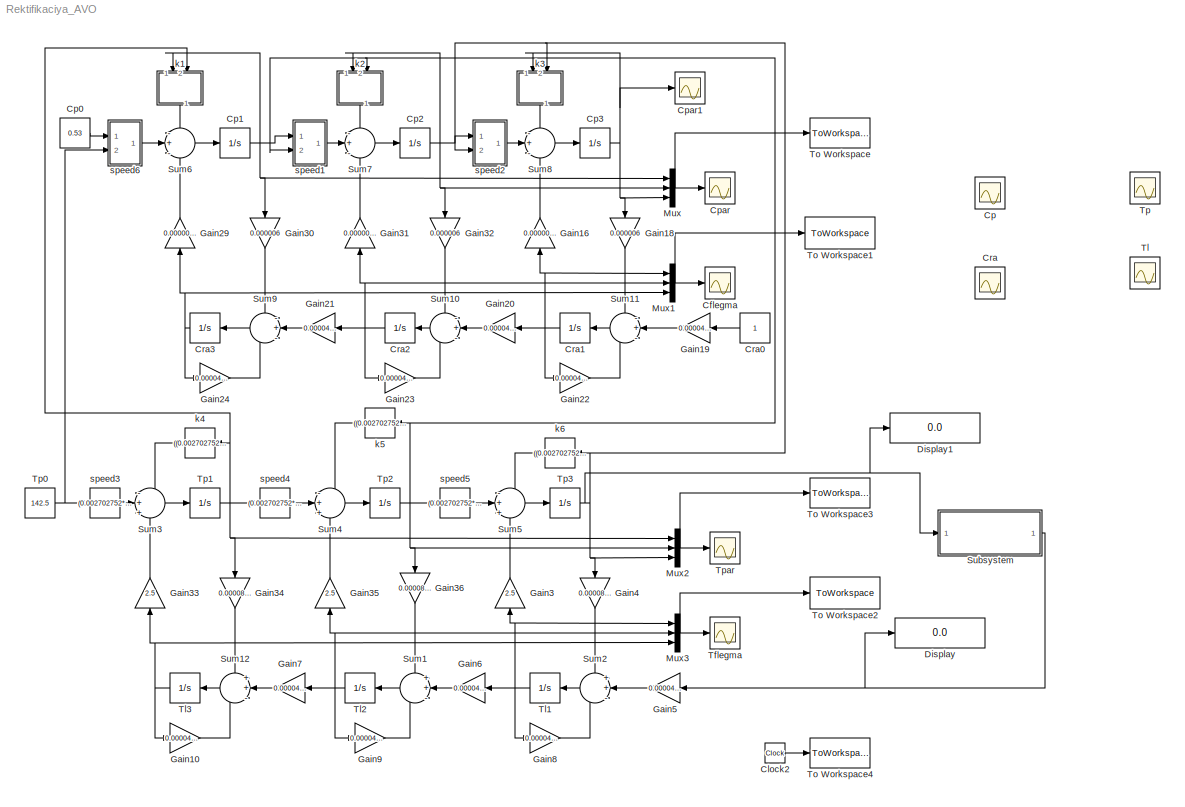
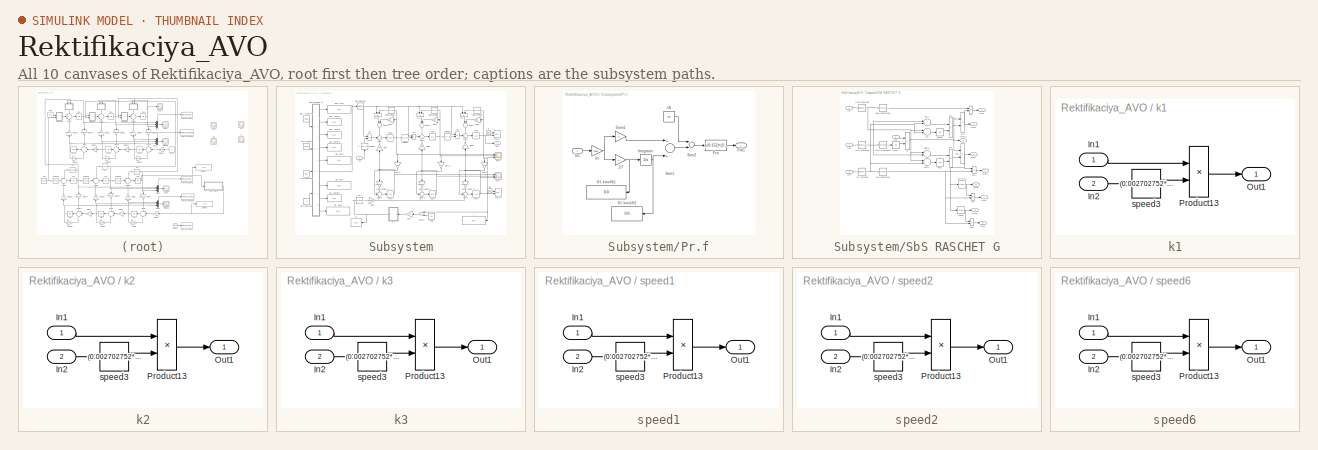
[diagram: thumbnail index - all 10 canvases of the model, root first then tree order]
MODEL Rektifikaciya_AVO
KIND model
BLOCK [Scope] Cflegma
  DataFormat = StructureWithTime
  Floating = off
  NumInputPorts = 1
  Ports = [1]
  SID = 123
  SampleTime = 0
  SaveName = ScopeData5
BLOCK [Clock] Clock2
  Decimation = 10
  SID = 127
BLOCK [Scope] Cp
  DataFormat = StructureWithTime
  Floating = off
  LimitDataPoints = off
  NumInputPorts = 3
  Ports = [3]
  SID = 114
  SampleTime = 0
  TimeRange = 12
  YMax = 62.5~82~95.37000000000001
  YMin = 61.5~77~95.34999999999999
BLOCK [Constant] Cp0
  SID = 2
  Value = 0.53
BLOCK [Integrator] Cp1
  InitialCondition = 0.665
  Ports = [1, 1]
  SID = 3
BLOCK [Integrator] Cp2
  InitialCondition = 0.803
  Ports = [1, 1]
  SID = 4
BLOCK [Integrator] Cp3
  InitialCondition = 0.986
  Ports = [1, 1]
  SID = 5
BLOCK [Scope] Cpar
  DataFormat = StructureWithTime
  Floating = off
  NumInputPorts = 1
  Ports = [1]
  SID = 122
  SampleTime = 0
  SaveName = ScopeData4
BLOCK [Scope] Cpar1
  DataFormat = StructureWithTime
  Floating = off
  LimitDataPoints = off
  NumInputPorts = 1
  Ports = [1]
  SID = 254
  SampleTime = 0
  SaveName = ScopeData10
BLOCK [Scope] Cra
  DataFormat = StructureWithTime
  Floating = off
  NumInputPorts = 3
  Ports = [3]
  SID = 115
  SampleTime = 0
  SaveName = ScopeData1
  YMax = 4.28~2.5~1
  YMin = 4.17~2.4~0.84
BLOCK [Constant] Cra0
  SID = 7
BLOCK [Integrator] Cra1
  InitialCondition = 0.827
  Ports = [1, 1]
  SID = 8
BLOCK [Integrator] Cra2
  InitialCondition = 0.6862
  Ports = [1, 1]
  SID = 9
BLOCK [Integrator] Cra3
  InitialCondition = 0.5696
  Ports = [1, 1]
  SID = 10
BLOCK [Display] Display
  Decimation = 1
  Lockdown = off
  Ports = [1]
  SID = 256
BLOCK [Display] Display1
  Decimation = 1
  Lockdown = off
  Ports = [1]
  SID = 257
BLOCK [Gain] Gain10
  Gain = 0.00004/1.17+0.0000855
  OutDataTypeMode = Inherit via internal rule
  OutDataTypeStr = Inherit: Inherit via internal rule
  ParamDataTypeStr = Inherit: Inherit via internal rule
  ParameterDataTypeMode = Inherit via internal rule
  SID = 11
  SaturateOnIntegerOverflow = off
BLOCK [Gain] Gain16
  Gain = 0.000000000145
  OutDataTypeMode = Inherit via internal rule
  OutDataTypeStr = Inherit: Inherit via internal rule
  ParamDataTypeStr = Inherit: Inherit via internal rule
  ParameterDataTypeMode = Inherit via internal rule
  SID = 12
  SaturateOnIntegerOverflow = off
BLOCK [Gain] Gain18
  Gain = 0.000006
  OutDataTypeMode = Inherit via internal rule
  OutDataTypeStr = Inherit: Inherit via internal rule
  ParamDataTypeStr = Inherit: Inherit via internal rule
  ParameterDataTypeMode = Inherit via internal rule
  SID = 13
  SaturateOnIntegerOverflow = off
BLOCK [Gain] Gain19
  Gain = 0.00004/1.17
  OutDataTypeMode = Inherit via internal rule
  OutDataTypeStr = Inherit: Inherit via internal rule
  ParamDataTypeStr = Inherit: Inherit via internal rule
  ParameterDataTypeMode = Inherit via internal rule
  SID = 14
  SaturateOnIntegerOverflow = off
BLOCK [Gain] Gain20
  Gain = 0.00004/1.17
  OutDataTypeMode = Inherit via internal rule
  OutDataTypeStr = Inherit: Inherit via internal rule
  ParamDataTypeStr = Inherit: Inherit via internal rule
  ParameterDataTypeMode = Inherit via internal rule
  SID = 15
  SaturateOnIntegerOverflow = off
BLOCK [Gain] Gain21
  Gain = 0.00004/1.17
  OutDataTypeMode = Inherit via internal rule
  OutDataTypeStr = Inherit: Inherit via internal rule
  ParamDataTypeStr = Inherit: Inherit via internal rule
  ParameterDataTypeMode = Inherit via internal rule
  SID = 16
  SaturateOnIntegerOverflow = off
BLOCK [Gain] Gain22
  Gain = 0.00004/1.17-(0.000006*0.000000000145)
  OutDataTypeMode = Inherit via internal rule
  OutDataTypeStr = Inherit: Inherit via internal rule
  ParamDataTypeStr = Inherit: Inherit via internal rule
  ParameterDataTypeMode = Inherit via internal rule
  SID = 17
  SaturateOnIntegerOverflow = off
BLOCK [Gain] Gain23
  Gain = 0.00004/1.17-(0.000006*0.000000000145)
  OutDataTypeMode = Inherit via internal rule
  OutDataTypeStr = Inherit: Inherit via internal rule
  ParamDataTypeStr = Inherit: Inherit via internal rule
  ParameterDataTypeMode = Inherit via internal rule
  SID = 18
  SaturateOnIntegerOverflow = off
BLOCK [Gain] Gain24
  Gain = 0.00004/1.17-(0.000006*0.000000000145)
  OutDataTypeMode = Inherit via internal rule
  OutDataTypeStr = Inherit: Inherit via internal rule
  ParamDataTypeStr = Inherit: Inherit via internal rule
  ParameterDataTypeMode = Inherit via internal rule
  SID = 19
  SaturateOnIntegerOverflow = off
BLOCK [Gain] Gain29
  Gain = 0.000000000145
  OutDataTypeMode = Inherit via internal rule
  OutDataTypeStr = Inherit: Inherit via internal rule
  ParamDataTypeStr = Inherit: Inherit via internal rule
  ParameterDataTypeMode = Inherit via internal rule
  SID = 20
  SaturateOnIntegerOverflow = off
BLOCK [Gain] Gain3
  Gain = 2.5
  OutDataTypeMode = Inherit via internal rule
  OutDataTypeStr = Inherit: Inherit via internal rule
  ParamDataTypeStr = Inherit: Inherit via internal rule
  ParameterDataTypeMode = Inherit via internal rule
  SID = 21
  SaturateOnIntegerOverflow = off
BLOCK [Gain] Gain30
  Gain = 0.000006
  OutDataTypeMode = Inherit via internal rule
  OutDataTypeStr = Inherit: Inherit via internal rule
  ParamDataTypeStr = Inherit: Inherit via internal rule
  ParameterDataTypeMode = Inherit via internal rule
  SID = 22
  SaturateOnIntegerOverflow = off
BLOCK [Gain] Gain31
  Gain = 0.000000000145
  OutDataTypeMode = Inherit via internal rule
  OutDataTypeStr = Inherit: Inherit via internal rule
  ParamDataTypeStr = Inherit: Inherit via internal rule
  ParameterDataTypeMode = Inherit via internal rule
  SID = 23
  SaturateOnIntegerOverflow = off
BLOCK [Gain] Gain32
  Gain = 0.000006
  OutDataTypeMode = Inherit via internal rule
  OutDataTypeStr = Inherit: Inherit via internal rule
  ParamDataTypeStr = Inherit: Inherit via internal rule
  ParameterDataTypeMode = Inherit via internal rule
  SID = 24
  SaturateOnIntegerOverflow = off
BLOCK [Gain] Gain33
  Gain = 2.5
  OutDataTypeMode = Inherit via internal rule
  OutDataTypeStr = Inherit: Inherit via internal rule
  ParamDataTypeStr = Inherit: Inherit via internal rule
  ParameterDataTypeMode = Inherit via internal rule
  SID = 25
  SaturateOnIntegerOverflow = off
BLOCK [Gain] Gain34
  Gain = 0.0000855
  OutDataTypeMode = Inherit via internal rule
  OutDataTypeStr = Inherit: Inherit via internal rule
  ParamDataTypeStr = Inherit: Inherit via internal rule
  ParameterDataTypeMode = Inherit via internal rule
  SID = 26
  SaturateOnIntegerOverflow = off
BLOCK [Gain] Gain35
  Gain = 2.5
  OutDataTypeMode = Inherit via internal rule
  OutDataTypeStr = Inherit: Inherit via internal rule
  ParamDataTypeStr = Inherit: Inherit via internal rule
  ParameterDataTypeMode = Inherit via internal rule
  SID = 27
  SaturateOnIntegerOverflow = off
BLOCK [Gain] Gain36
  Gain = 0.0000855
  OutDataTypeMode = Inherit via internal rule
  OutDataTypeStr = Inherit: Inherit via internal rule
  ParamDataTypeStr = Inherit: Inherit via internal rule
  ParameterDataTypeMode = Inherit via internal rule
  SID = 28
  SaturateOnIntegerOverflow = off
BLOCK [Gain] Gain4
  Gain = 0.0000855
  OutDataTypeMode = Inherit via internal rule
  OutDataTypeStr = Inherit: Inherit via internal rule
  ParamDataTypeStr = Inherit: Inherit via internal rule
  ParameterDataTypeMode = Inherit via internal rule
  SID = 29
  SaturateOnIntegerOverflow = off
BLOCK [Gain] Gain5
  Gain = 0.00004/1.17
  OutDataTypeMode = Inherit via internal rule
  OutDataTypeStr = Inherit: Inherit via internal rule
  ParamDataTypeStr = Inherit: Inherit via internal rule
  ParameterDataTypeMode = Inherit via internal rule
  SID = 30
  SaturateOnIntegerOverflow = off
BLOCK [Gain] Gain6
  Gain = 0.00004/1.17
  OutDataTypeMode = Inherit via internal rule
  OutDataTypeStr = Inherit: Inherit via internal rule
  ParamDataTypeStr = Inherit: Inherit via internal rule
  ParameterDataTypeMode = Inherit via internal rule
  SID = 31
  SaturateOnIntegerOverflow = off
BLOCK [Gain] Gain7
  Gain = 0.00004/1.17
  OutDataTypeMode = Inherit via internal rule
  OutDataTypeStr = Inherit: Inherit via internal rule
  ParamDataTypeStr = Inherit: Inherit via internal rule
  ParameterDataTypeMode = Inherit via internal rule
  SID = 32
  SaturateOnIntegerOverflow = off
BLOCK [Gain] Gain8
  Gain = 0.00004/1.17+0.0000855
  OutDataTypeMode = Inherit via internal rule
  OutDataTypeStr = Inherit: Inherit via internal rule
  ParamDataTypeStr = Inherit: Inherit via internal rule
  ParameterDataTypeMode = Inherit via internal rule
  SID = 33
  SaturateOnIntegerOverflow = off
BLOCK [Gain] Gain9
  Gain = 0.00004/1.17+0.0000855
  OutDataTypeMode = Inherit via internal rule
  OutDataTypeStr = Inherit: Inherit via internal rule
  ParamDataTypeStr = Inherit: Inherit via internal rule
  ParameterDataTypeMode = Inherit via internal rule
  SID = 34
  SaturateOnIntegerOverflow = off
BLOCK [Mux] Mux
  Inputs = 3
  Ports = [3, 1]
  SID = 118
BLOCK [Mux] Mux1
  Inputs = 3
  Ports = [3, 1]
  SID = 119
BLOCK [Mux] Mux2
  Inputs = 3
  Ports = [3, 1]
  SID = 120
BLOCK [Mux] Mux3
  Inputs = 3
  Ports = [3, 1]
  SID = 121
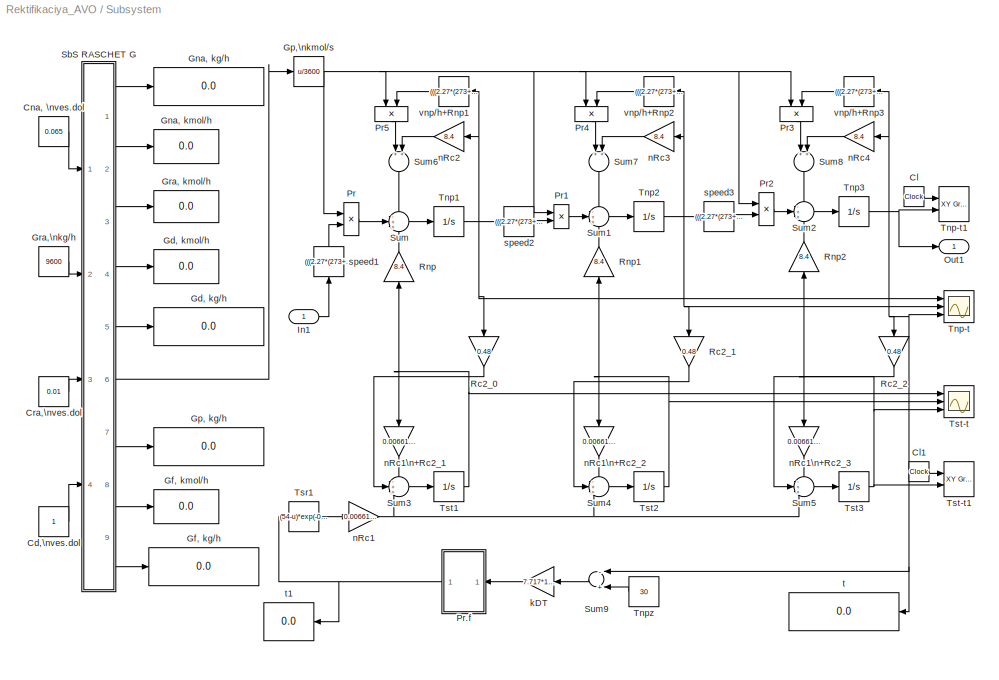
BLOCK [SubSystem] Subsystem
  FunctionWithSeparateData = off
  MaskHideContents = off
  MinAlgLoopOccurrences = off
  Opaque = off
  Ports = [1, 1]
  PropExecContextOutsideSubsystem = off
  RTWSystemCode = Auto
  RequestExecContextInheritance = off
  SID = 132
BLOCK [Constant] Subsystem/Cd,\nves.dol
  SID = 136
BLOCK [Clock] Subsystem/Cl
  Decimation = 10
  SID = 137
BLOCK [Clock] Subsystem/Cl1
  Decimation = 10
  SID = 138
BLOCK [Constant] Subsystem/Cna, \nves.dol
  SID = 139
  Value = 0.065
BLOCK [Constant] Subsystem/Cra,\nves.dol
  SID = 140
  Value = 0.01
BLOCK [Display] Subsystem/Gd, kg//h
  Decimation = 1
  Format = long
  Lockdown = off
  Ports = [1]
  SID = 141
BLOCK [Display] Subsystem/Gd, kmol//h
  Decimation = 1
  Lockdown = off
  Ports = [1]
  SID = 142
BLOCK [Display] Subsystem/Gf, kg//h
  Decimation = 1
  Format = long
  Lockdown = off
  Ports = [1]
  SID = 143
BLOCK [Display] Subsystem/Gf, kmol//h
  Decimation = 1
  Lockdown = off
  Ports = [1]
  SID = 144
BLOCK [Display] Subsystem/Gna, kg//h
  Decimation = 1
  Format = long
  Lockdown = off
  Ports = [1]
  SID = 145
BLOCK [Display] Subsystem/Gna, kmol//h
  Decimation = 1
  Lockdown = off
  Ports = [1]
  SID = 146
BLOCK [Display] Subsystem/Gp, kg//h
  Decimation = 1
  Format = long
  Lockdown = off
  Ports = [1]
  SID = 148
BLOCK [Fcn] Subsystem/Gp,\nkmol//s
  Expr = u/3600
  SID = 147
BLOCK [Display] Subsystem/Gra, kmol//h
  Decimation = 1
  Lockdown = off
  Ports = [1]
  SID = 150
BLOCK [Constant] Subsystem/Gra,\nkg//h
  SID = 149
  Value = 9600
BLOCK [Inport] Subsystem/In1
  IconDisplay = Port number
  OutDataType = fixdt(1, 16)
  OutScaling = 2^0
  SID = 133
BLOCK [Outport] Subsystem/Out1
  IconDisplay = Port number
  OutDataType = fixdt(1, 16)
  OutScaling = 2^0
  SID = 134
BLOCK [Product] Subsystem/Pr
  InputSameDT = off
  OutDataTypeMode = Inherit via internal rule
  OutDataTypeStr = Inherit: Inherit via internal rule
  Ports = [2, 1]
  SID = 151
  SaturateOnIntegerOverflow = off
BLOCK [SubSystem] Subsystem/Pr.f
  FunctionWithSeparateData = off
  MaskHideContents = off
  MinAlgLoopOccurrences = off
  Opaque = off
  Ports = [1, 1]
  PropExecContextOutsideSubsystem = off
  RTWSystemCode = Auto
  RequestExecContextInheritance = off
  SID = 152
BLOCK [Gain] Subsystem/Pr.f/1//T
  OutDataTypeMode = Inherit via internal rule
  OutDataTypeStr = Inherit: Inherit via internal rule
  ParamDataTypeStr = Inherit: Inherit via internal rule
  ParameterDataTypeMode = Inherit via internal rule
  SID = 154
  SaturateOnIntegerOverflow = off
BLOCK [Fcn] Subsystem/Pr.f/Fcn
  Expr = (u/0.152)^(1/2)
  SID = 155
BLOCK [Gain] Subsystem/Pr.f/Gain1
  OutDataTypeMode = Inherit via internal rule
  OutDataTypeStr = Inherit: Inherit via internal rule
  ParamDataTypeStr = Inherit: Inherit via internal rule
  ParameterDataTypeMode = Inherit via internal rule
  SID = 156
  SaturateOnIntegerOverflow = off
BLOCK [Display] Subsystem/Pr.f/Gf, kmol//h1
  Decimation = 1
  Lockdown = off
  Ports = [1]
  SID = 157
BLOCK [Display] Subsystem/Pr.f/Gf, kmol//h2
  Decimation = 1
  Lockdown = off
  Ports = [1]
  SID = 158
BLOCK [Inport] Subsystem/Pr.f/In1
  IconDisplay = Port number
  SID = 153
BLOCK [Integrator] Subsystem/Pr.f/Integrator
  InitialCondition = 403.6
  Ports = [1, 1]
  SID = 159
BLOCK [Outport] Subsystem/Pr.f/Out1
  IconDisplay = Port number
  SID = 164
BLOCK [Sum] Subsystem/Pr.f/Sum1
  InputSameDT = off
  OutDataTypeMode = Inherit via internal rule
  OutDataTypeStr = Inherit: Inherit via internal rule
  Ports = [2, 1]
  SID = 160
  SaturateOnIntegerOverflow = off
BLOCK [Sum] Subsystem/Pr.f/Sum2
  InputSameDT = off
  Inputs = -+
  OutDataTypeMode = Inherit via internal rule
  OutDataTypeStr = Inherit: Inherit via internal rule
  Ports = [2, 1]
  SID = 161
  SaturateOnIntegerOverflow = off
BLOCK [Constant] Subsystem/Pr.f/U1
  SID = 162
  Value = 380
BLOCK [Gain] Subsystem/Pr.f/kn
  Gain = 4300
  OutDataTypeMode = Inherit via internal rule
  OutDataTypeStr = Inherit: Inherit via internal rule
  ParamDataTypeStr = Inherit: Inherit via internal rule
  ParameterDataTypeMode = Inherit via internal rule
  SID = 163
  SaturateOnIntegerOverflow = off
BLOCK [Product] Subsystem/Pr1
  InputSameDT = off
  OutDataTypeMode = Inherit via internal rule
  OutDataTypeStr = Inherit: Inherit via internal rule
  Ports = [2, 1]
  SID = 165
  SaturateOnIntegerOverflow = off
BLOCK [Product] Subsystem/Pr2
  InputSameDT = off
  OutDataTypeMode = Inherit via internal rule
  OutDataTypeStr = Inherit: Inherit via internal rule
  Ports = [2, 1]
  SID = 166
  SaturateOnIntegerOverflow = off
BLOCK [Product] Subsystem/Pr3
  InputSameDT = off
  OutDataTypeMode = Inherit via internal rule
  OutDataTypeStr = Inherit: Inherit via internal rule
  Ports = [2, 1]
  SID = 167
  SaturateOnIntegerOverflow = off
BLOCK [Product] Subsystem/Pr4
  InputSameDT = off
  OutDataTypeMode = Inherit via internal rule
  OutDataTypeStr = Inherit: Inherit via internal rule
  Ports = [2, 1]
  SID = 168
  SaturateOnIntegerOverflow = off
BLOCK [Product] Subsystem/Pr5
  InputSameDT = off
  OutDataTypeMode = Inherit via internal rule
  OutDataTypeStr = Inherit: Inherit via internal rule
  Ports = [2, 1]
  SID = 169
  SaturateOnIntegerOverflow = off
BLOCK [Gain] Subsystem/Rc2_0
  Gain = 0.48
  OutDataTypeMode = Inherit via internal rule
  OutDataTypeStr = Inherit: Inherit via internal rule
  ParamDataTypeStr = Inherit: Inherit via internal rule
  ParameterDataTypeMode = Inherit via internal rule
  SID = 170
  SaturateOnIntegerOverflow = off
BLOCK [Gain] Subsystem/Rc2_1
  Gain = 0.48
  OutDataTypeMode = Inherit via internal rule
  OutDataTypeStr = Inherit: Inherit via internal rule
  ParamDataTypeStr = Inherit: Inherit via internal rule
  ParameterDataTypeMode = Inherit via internal rule
  SID = 171
  SaturateOnIntegerOverflow = off
BLOCK [Gain] Subsystem/Rc2_2
  Gain = 0.48
  OutDataTypeMode = Inherit via internal rule
  OutDataTypeStr = Inherit: Inherit via internal rule
  ParamDataTypeStr = Inherit: Inherit via internal rule
  ParameterDataTypeMode = Inherit via internal rule
  SID = 172
  SaturateOnIntegerOverflow = off
BLOCK [Gain] Subsystem/Rnp
  Gain = 8.4
  OutDataTypeMode = Inherit via internal rule
  OutDataTypeStr = Inherit: Inherit via internal rule
  ParamDataTypeStr = Inherit: Inherit via internal rule
  ParameterDataTypeMode = Inherit via internal rule
  SID = 173
  SaturateOnIntegerOverflow = off
BLOCK [Gain] Subsystem/Rnp1
  Gain = 8.4
  OutDataTypeMode = Inherit via internal rule
  OutDataTypeStr = Inherit: Inherit via internal rule
  ParamDataTypeStr = Inherit: Inherit via internal rule
  ParameterDataTypeMode = Inherit via internal rule
  SID = 174
  SaturateOnIntegerOverflow = off
BLOCK [Gain] Subsystem/Rnp2
  Gain = 8.4
  OutDataTypeMode = Inherit via internal rule
  OutDataTypeStr = Inherit: Inherit via internal rule
  ParamDataTypeStr = Inherit: Inherit via internal rule
  ParameterDataTypeMode = Inherit via internal rule
  SID = 175
  SaturateOnIntegerOverflow = off
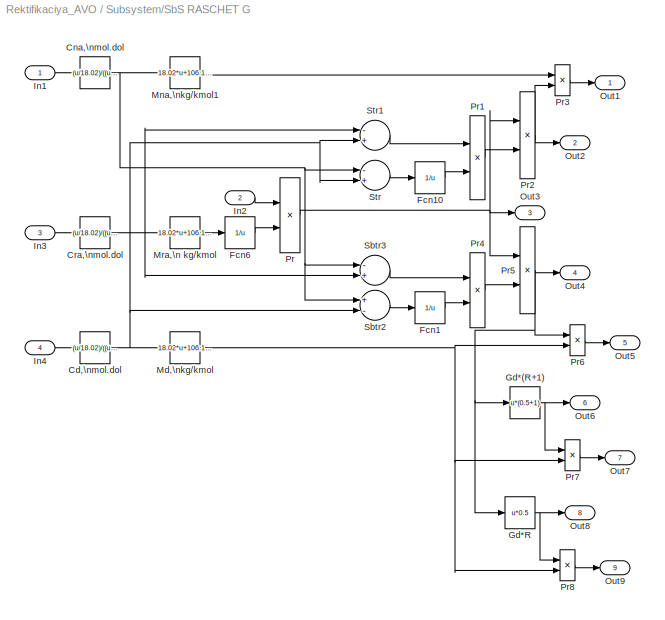
BLOCK [SubSystem] Subsystem/SbS RASCHET G
  FunctionWithSeparateData = off
  MaskHideContents = off
  MinAlgLoopOccurrences = off
  Opaque = off
  Ports = [4, 9]
  PropExecContextOutsideSubsystem = off
  RTWSystemCode = Auto
  RequestExecContextInheritance = off
  SID = 176
BLOCK [Fcn] Subsystem/SbS RASCHET G/Cd,\nmol.dol
  Expr = (u/18.02)/((u/18.02)+((1-u)/106.12))
  SID = 181
BLOCK [Fcn] Subsystem/SbS RASCHET G/Cna,\nmol.dol
  Expr = (u/18.02)/((u/18.02)+((1-u)/106.12))
  SID = 182
BLOCK [Fcn] Subsystem/SbS RASCHET G/Cra,\nmol.dol
  Expr = (u/18.02)/((u/18.02)+((1-u)/106.12))
  SID = 183
BLOCK [Fcn] Subsystem/SbS RASCHET G/Fcn1
  Expr = 1/u
  SID = 184
BLOCK [Fcn] Subsystem/SbS RASCHET G/Fcn10
  Expr = 1/u
  SID = 185
BLOCK [Fcn] Subsystem/SbS RASCHET G/Fcn6
  Expr = 1/u
  SID = 186
BLOCK [Fcn] Subsystem/SbS RASCHET G/Gd*(R+1)
  Expr = u*(0.5+1)
  SID = 187
BLOCK [Fcn] Subsystem/SbS RASCHET G/Gd*R
  Expr = u*0.5
  SID = 188
BLOCK [Inport] Subsystem/SbS RASCHET G/In1
  IconDisplay = Port number
  SID = 177
BLOCK [Inport] Subsystem/SbS RASCHET G/In2
  IconDisplay = Port number
  Port = 2
  SID = 178
BLOCK [Inport] Subsystem/SbS RASCHET G/In3
  IconDisplay = Port number
  Port = 3
  SID = 179
BLOCK [Inport] Subsystem/SbS RASCHET G/In4
  IconDisplay = Port number
  Port = 4
  SID = 180
BLOCK [Fcn] Subsystem/SbS RASCHET G/Md,\nkg//kmol
  Expr = 18.02*u+106.12*(1-u)
  SID = 189
BLOCK [Fcn] Subsystem/SbS RASCHET G/Mna,\nkg//kmol1
  Expr = 18.02*u+106.12*(1-u)
  SID = 190
BLOCK [Fcn] Subsystem/SbS RASCHET G/Mra,\n kg//kmol
  Expr = 18.02*u+106.12*(1-u)
  SID = 191
BLOCK [Outport] Subsystem/SbS RASCHET G/Out1
  IconDisplay = Port number
  SID = 205
BLOCK [Outport] Subsystem/SbS RASCHET G/Out2
  IconDisplay = Port number
  Port = 2
  SID = 206
BLOCK [Outport] Subsystem/SbS RASCHET G/Out3
  IconDisplay = Port number
  Port = 3
  SID = 207
BLOCK [Outport] Subsystem/SbS RASCHET G/Out4
  IconDisplay = Port number
  Port = 4
  SID = 208
BLOCK [Outport] Subsystem/SbS RASCHET G/Out5
  IconDisplay = Port number
  Port = 5
  SID = 209
BLOCK [Outport] Subsystem/SbS RASCHET G/Out6
  IconDisplay = Port number
  Port = 6
  SID = 210
BLOCK [Outport] Subsystem/SbS RASCHET G/Out7
  IconDisplay = Port number
  Port = 7
  SID = 211
BLOCK [Outport] Subsystem/SbS RASCHET G/Out8
  IconDisplay = Port number
  Port = 8
  SID = 212
BLOCK [Outport] Subsystem/SbS RASCHET G/Out9
  IconDisplay = Port number
  Port = 9
  SID = 213
BLOCK [Product] Subsystem/SbS RASCHET G/Pr
  InputSameDT = off
  OutDataTypeMode = Inherit via internal rule
  OutDataTypeStr = Inherit: Inherit via internal rule
  Ports = [2, 1]
  SID = 192
  SaturateOnIntegerOverflow = off
BLOCK [Product] Subsystem/SbS RASCHET G/Pr1
  InputSameDT = off
  OutDataTypeMode = Inherit via internal rule
  OutDataTypeStr = Inherit: Inherit via internal rule
  Ports = [2, 1]
  SID = 193
  SaturateOnIntegerOverflow = off
BLOCK [Product] Subsystem/SbS RASCHET G/Pr2
  InputSameDT = off
  OutDataTypeMode = Inherit via internal rule
  OutDataTypeStr = Inherit: Inherit via internal rule
  Ports = [2, 1]
  SID = 194
  SaturateOnIntegerOverflow = off
BLOCK [Product] Subsystem/SbS RASCHET G/Pr3
  InputSameDT = off
  OutDataTypeMode = Inherit via internal rule
  OutDataTypeStr = Inherit: Inherit via internal rule
  Ports = [2, 1]
  SID = 195
  SaturateOnIntegerOverflow = off
BLOCK [Product] Subsystem/SbS RASCHET G/Pr4
  InputSameDT = off
  OutDataTypeMode = Inherit via internal rule
  OutDataTypeStr = Inherit: Inherit via internal rule
  Ports = [2, 1]
  SID = 196
  SaturateOnIntegerOverflow = off
BLOCK [Product] Subsystem/SbS RASCHET G/Pr5
  InputSameDT = off
  OutDataTypeMode = Inherit via internal rule
  OutDataTypeStr = Inherit: Inherit via internal rule
  Ports = [2, 1]
  SID = 197
  SaturateOnIntegerOverflow = off
BLOCK [Product] Subsystem/SbS RASCHET G/Pr6
  InputSameDT = off
  OutDataTypeMode = Inherit via internal rule
  OutDataTypeStr = Inherit: Inherit via internal rule
  Ports = [2, 1]
  SID = 198
  SaturateOnIntegerOverflow = off
BLOCK [Product] Subsystem/SbS RASCHET G/Pr7
  InputSameDT = off
  OutDataTypeMode = Inherit via internal rule
  OutDataTypeStr = Inherit: Inherit via internal rule
  Ports = [2, 1]
  SID = 199
  SaturateOnIntegerOverflow = off
BLOCK [Product] Subsystem/SbS RASCHET G/Pr8
  InputSameDT = off
  OutDataTypeMode = Inherit via internal rule
  OutDataTypeStr = Inherit: Inherit via internal rule
  Ports = [2, 1]
  SID = 200
  SaturateOnIntegerOverflow = off
BLOCK [Sum] Subsystem/SbS RASCHET G/Sbtr2
  InputSameDT = off
  Inputs = +-
  OutDataTypeMode = Inherit via internal rule
  OutDataTypeStr = Inherit: Inherit via internal rule
  Ports = [2, 1]
  SID = 201
  SaturateOnIntegerOverflow = off
BLOCK [Sum] Subsystem/SbS RASCHET G/Sbtr3
  InputSameDT = off
  Inputs = -+
  OutDataTypeMode = Inherit via internal rule
  OutDataTypeStr = Inherit: Inherit via internal rule
  Ports = [2, 1]
  SID = 202
  SaturateOnIntegerOverflow = off
BLOCK [Sum] Subsystem/SbS RASCHET G/Str
  InputSameDT = off
  Inputs = -+
  OutDataTypeMode = Inherit via internal rule
  OutDataTypeStr = Inherit: Inherit via internal rule
  Ports = [2, 1]
  SID = 203
  SaturateOnIntegerOverflow = off
BLOCK [Sum] Subsystem/SbS RASCHET G/Str1
  InputSameDT = off
  Inputs = -+
  OutDataTypeMode = Inherit via internal rule
  OutDataTypeStr = Inherit: Inherit via internal rule
  Ports = [2, 1]
  SID = 204
  SaturateOnIntegerOverflow = off
BLOCK [Sum] Subsystem/Sum
  IconShape = round
  InputSameDT = off
  Inputs = -++
  OutDataTypeMode = Inherit via internal rule
  OutDataTypeStr = Inherit: Inherit via internal rule
  Ports = [3, 1]
  SID = 214
  SaturateOnIntegerOverflow = off
BLOCK [Sum] Subsystem/Sum1
  IconShape = round
  InputSameDT = off
  Inputs = -++
  OutDataTypeMode = Inherit via internal rule
  OutDataTypeStr = Inherit: Inherit via internal rule
  Ports = [3, 1]
  SID = 215
  SaturateOnIntegerOverflow = off
BLOCK [Sum] Subsystem/Sum2
  IconShape = round
  InputSameDT = off
  Inputs = -++
  OutDataTypeMode = Inherit via internal rule
  OutDataTypeStr = Inherit: Inherit via internal rule
  Ports = [3, 1]
  SID = 216
  SaturateOnIntegerOverflow = off
BLOCK [Sum] Subsystem/Sum3
  IconShape = round
  InputSameDT = off
  Inputs = -++
  OutDataTypeMode = Inherit via internal rule
  OutDataTypeStr = Inherit: Inherit via internal rule
  Ports = [3, 1]
  SID = 217
  SaturateOnIntegerOverflow = off
BLOCK [Sum] Subsystem/Sum4
  IconShape = round
  InputSameDT = off
  Inputs = -++
  OutDataTypeMode = Inherit via internal rule
  OutDataTypeStr = Inherit: Inherit via internal rule
  Ports = [3, 1]
  SID = 218
  SaturateOnIntegerOverflow = off
BLOCK [Sum] Subsystem/Sum5
  IconShape = round
  InputSameDT = off
  Inputs = -++
  OutDataTypeMode = Inherit via internal rule
  OutDataTypeStr = Inherit: Inherit via internal rule
  Ports = [3, 1]
  SID = 219
  SaturateOnIntegerOverflow = off
BLOCK [Sum] Subsystem/Sum6
  InputSameDT = off
  OutDataTypeMode = Inherit via internal rule
  OutDataTypeStr = Inherit: Inherit via internal rule
  Ports = [2, 1]
  SID = 220
  SaturateOnIntegerOverflow = off
BLOCK [Sum] Subsystem/Sum7
  InputSameDT = off
  OutDataTypeMode = Inherit via internal rule
  OutDataTypeStr = Inherit: Inherit via internal rule
  Ports = [2, 1]
  SID = 221
  SaturateOnIntegerOverflow = off
BLOCK [Sum] Subsystem/Sum8
  InputSameDT = off
  OutDataTypeMode = Inherit via internal rule
  OutDataTypeStr = Inherit: Inherit via internal rule
  Ports = [2, 1]
  SID = 222
  SaturateOnIntegerOverflow = off
BLOCK [Sum] Subsystem/Sum9
  InputSameDT = off
  Inputs = -+
  OutDataTypeMode = Inherit via internal rule
  OutDataTypeStr = Inherit: Inherit via internal rule
  Ports = [2, 1]
  SID = 223
  SaturateOnIntegerOverflow = off
BLOCK [Scope] Subsystem/Tnp-t
  DataFormat = StructureWithTime
  Floating = off
  NumInputPorts = 3
  Ports = [3]
  SID = 224
  SampleTime = 0
  SaveName = ScopeData8
  YMax = 75.1278~74.1435~73.1721
  YMin = 67.9728~67.0823~66.2033
BLOCK [Reference] Subsystem/Tnp-t1  REF=simulink/Sinks/XY Graph
  FunctionWithSeparateData = off
  Ports = [2]
  RTWMemSecDataConstants = Inherit from model
  RTWMemSecDataInternal = Inherit from model
  RTWMemSecDataParameters = Inherit from model
  RTWMemSecFuncExecute = Inherit from model
  RTWMemSecFuncInitTerm = Inherit from model
  SID = 225
  ShowPortLabels = FromPortIcon
  SourceBlock = simulink/Sinks/XY Graph
  SourceType = XY scope.
  SystemSampleTime = -1
  st = -1
  xmax = 1000
  xmin = 0
  ymax = 50
  ymin = 10
BLOCK [Integrator] Subsystem/Tnp1
  InitialCondition = 55.042986606641151
  Ports = [1, 1]
  SID = 227
BLOCK [Integrator] Subsystem/Tnp2
  InitialCondition = 42.494060413287038
  Ports = [1, 1]
  SID = 228
BLOCK [Integrator] Subsystem/Tnp3
  InitialCondition = 33.818616670435347
  Ports = [1, 1]
  SID = 229
BLOCK [Constant] Subsystem/Tnpz
  SID = 230
  Value = 30
BLOCK [Fcn] Subsystem/Tsr1
  Expr = (54-u)*exp(-0.06*101.25)+u
  SID = 231
BLOCK [Scope] Subsystem/Tst-t
  DataFormat = StructureWithTime
  Floating = off
  NumInputPorts = 3
  Ports = [3]
  SID = 232
  SampleTime = 0
  SaveName = ScopeData9
  YMax = 354.532~633.998~913.686
  YMin = 320.767~573.618~826.668
BLOCK [Reference] Subsystem/Tst-t1  REF=simulink/Sinks/XY Graph
  FunctionWithSeparateData = off
  Ports = [2]
  RTWMemSecDataConstants = Inherit from model
  RTWMemSecDataInternal = Inherit from model
  RTWMemSecDataParameters = Inherit from model
  RTWMemSecFuncExecute = Inherit from model
  RTWMemSecFuncInitTerm = Inherit from model
  SID = 233
  ShowPortLabels = FromPortIcon
  SourceBlock = simulink/Sinks/XY Graph
  SourceType = XY scope.
  SystemSampleTime = -1
  st = -1
  xmax = 1000
  xmin = 0
  ymax = 50
  ymin = 10
BLOCK [Integrator] Subsystem/Tst1
  InitialCondition = 30.749212884999000
  Ports = [1, 1]
  SID = 234
BLOCK [Integrator] Subsystem/Tst2
  InitialCondition = 26.338794670104530
  Ports = [1, 1]
  SID = 235
BLOCK [Integrator] Subsystem/Tst3
  InitialCondition = 23.289742144317184
  Ports = [1, 1]
  SID = 236
BLOCK [Gain] Subsystem/kDT
  Gain = 7.717*10^(-5)
  OutDataTypeMode = Inherit via internal rule
  OutDataTypeStr = Inherit: Inherit via internal rule
  ParamDataTypeStr = Inherit: Inherit via internal rule
  ParameterDataTypeMode = Inherit via internal rule
  SID = 237
  SaturateOnIntegerOverflow = off
BLOCK [Gain] Subsystem/nRc1
  Gain = 0.00661*134
  OutDataTypeMode = Inherit via internal rule
  OutDataTypeStr = Inherit: Inherit via internal rule
  ParamDataTypeStr = Inherit: Inherit via internal rule
  ParameterDataTypeMode = Inherit via internal rule
  SID = 238
  SaturateOnIntegerOverflow = off
BLOCK [Gain] Subsystem/nRc1\n+Rc2_1
  Gain = 0.00661*134+0.48
  OutDataTypeMode = Inherit via internal rule
  OutDataTypeStr = Inherit: Inherit via internal rule
  ParamDataTypeStr = Inherit: Inherit via internal rule
  ParameterDataTypeMode = Inherit via internal rule
  SID = 239
  SaturateOnIntegerOverflow = off
BLOCK [Gain] Subsystem/nRc1\n+Rc2_2
  Gain = 0.00661*134+0.48
  OutDataTypeMode = Inherit via internal rule
  OutDataTypeStr = Inherit: Inherit via internal rule
  ParamDataTypeStr = Inherit: Inherit via internal rule
  ParameterDataTypeMode = Inherit via internal rule
  SID = 240
  SaturateOnIntegerOverflow = off
BLOCK [Gain] Subsystem/nRc1\n+Rc2_3
  Gain = 0.00661*134+0.48
  OutDataTypeMode = Inherit via internal rule
  OutDataTypeStr = Inherit: Inherit via internal rule
  ParamDataTypeStr = Inherit: Inherit via internal rule
  ParameterDataTypeMode = Inherit via internal rule
  SID = 241
  SaturateOnIntegerOverflow = off
BLOCK [Gain] Subsystem/nRc2
  Gain = 8.4
  OutDataTypeMode = Inherit via internal rule
  OutDataTypeStr = Inherit: Inherit via internal rule
  ParamDataTypeStr = Inherit: Inherit via internal rule
  ParameterDataTypeMode = Inherit via internal rule
  SID = 242
  SaturateOnIntegerOverflow = off
BLOCK [Gain] Subsystem/nRc3
  Gain = 8.4
  OutDataTypeMode = Inherit via internal rule
  OutDataTypeStr = Inherit: Inherit via internal rule
  ParamDataTypeStr = Inherit: Inherit via internal rule
  ParameterDataTypeMode = Inherit via internal rule
  SID = 243
  SaturateOnIntegerOverflow = off
BLOCK [Gain] Subsystem/nRc4
  Gain = 8.4
  OutDataTypeMode = Inherit via internal rule
  OutDataTypeStr = Inherit: Inherit via internal rule
  ParamDataTypeStr = Inherit: Inherit via internal rule
  ParameterDataTypeMode = Inherit via internal rule
  SID = 244
  SaturateOnIntegerOverflow = off
BLOCK [Fcn] Subsystem/speed1
  Expr = (((2.27*(273+u))/1.4184)/1.333)*u
  SID = 245
BLOCK [Fcn] Subsystem/speed2
  Expr = (((2.27*(273+u))/1.4184)/1.333)*u
  SID = 246
BLOCK [Fcn] Subsystem/speed3
  Expr = (((2.27*(273+u))/1.4184)/1.333)*u
  SID = 247
BLOCK [Display] Subsystem/t
  Decimation = 1
  Lockdown = off
  Ports = [1]
  SID = 248
BLOCK [Display] Subsystem/t1
  Decimation = 1
  Lockdown = off
  Ports = [1]
  SID = 249
BLOCK [Fcn] Subsystem/vnp//h+Rnp1
  Expr = (((2.27*(273+u))/1.4184)/1.333)*u
  SID = 250
BLOCK [Fcn] Subsystem/vnp//h+Rnp2
  Expr = (((2.27*(273+u))/1.4184)/1.333)*u
  SID = 251
BLOCK [Fcn] Subsystem/vnp//h+Rnp3
  Expr = (((2.27*(273+u))/1.4184)/1.333)*u
  SID = 252
BLOCK [Sum] Sum1
  IconShape = round
  InputSameDT = off
  Inputs = ++-
  OutDataTypeMode = Inherit via internal rule
  OutDataTypeStr = Inherit: Inherit via internal rule
  Ports = [3, 1]
  SID = 35
  SaturateOnIntegerOverflow = off
BLOCK [Sum] Sum10
  IconShape = round
  InputSameDT = off
  Inputs = -+-
  OutDataTypeMode = Inherit via internal rule
  OutDataTypeStr = Inherit: Inherit via internal rule
  Ports = [3, 1]
  SID = 36
  SaturateOnIntegerOverflow = off
BLOCK [Sum] Sum11
  IconShape = round
  InputSameDT = off
  Inputs = -+-
  OutDataTypeMode = Inherit via internal rule
  OutDataTypeStr = Inherit: Inherit via internal rule
  Ports = [3, 1]
  SID = 37
  SaturateOnIntegerOverflow = off
BLOCK [Sum] Sum12
  IconShape = round
  InputSameDT = off
  Inputs = ++-
  OutDataTypeMode = Inherit via internal rule
  OutDataTypeStr = Inherit: Inherit via internal rule
  Ports = [3, 1]
  SID = 38
  SaturateOnIntegerOverflow = off
BLOCK [Sum] Sum2
  IconShape = round
  InputSameDT = off
  Inputs = ++-
  OutDataTypeMode = Inherit via internal rule
  OutDataTypeStr = Inherit: Inherit via internal rule
  Ports = [3, 1]
  SID = 39
  SaturateOnIntegerOverflow = off
BLOCK [Sum] Sum3
  IconShape = round
  InputSameDT = off
  Inputs = -++
  OutDataTypeMode = Inherit via internal rule
  OutDataTypeStr = Inherit: Inherit via internal rule
  Ports = [3, 1]
  SID = 40
  SaturateOnIntegerOverflow = off
BLOCK [Sum] Sum4
  IconShape = round
  InputSameDT = off
  Inputs = -++
  OutDataTypeMode = Inherit via internal rule
  OutDataTypeStr = Inherit: Inherit via internal rule
  Ports = [3, 1]
  SID = 41
  SaturateOnIntegerOverflow = off
BLOCK [Sum] Sum5
  IconShape = round
  InputSameDT = off
  Inputs = -++
  OutDataTypeMode = Inherit via internal rule
  OutDataTypeStr = Inherit: Inherit via internal rule
  Ports = [3, 1]
  SID = 42
  SaturateOnIntegerOverflow = off
BLOCK [Sum] Sum6
  IconShape = round
  InputSameDT = off
  Inputs = -+-
  OutDataTypeMode = Inherit via internal rule
  OutDataTypeStr = Inherit: Inherit via internal rule
  Ports = [3, 1]
  SID = 43
  SaturateOnIntegerOverflow = off
BLOCK [Sum] Sum7
  IconShape = round
  InputSameDT = off
  Inputs = -+-
  OutDataTypeMode = Inherit via internal rule
  OutDataTypeStr = Inherit: Inherit via internal rule
  Ports = [3, 1]
  SID = 44
  SaturateOnIntegerOverflow = off
BLOCK [Sum] Sum8
  IconShape = round
  InputSameDT = off
  Inputs = -+-
  OutDataTypeMode = Inherit via internal rule
  OutDataTypeStr = Inherit: Inherit via internal rule
  Ports = [3, 1]
  SID = 45
  SaturateOnIntegerOverflow = off
BLOCK [Sum] Sum9
  IconShape = round
  InputSameDT = off
  Inputs = -+-
  OutDataTypeMode = Inherit via internal rule
  OutDataTypeStr = Inherit: Inherit via internal rule
  Ports = [3, 1]
  SID = 46
  SaturateOnIntegerOverflow = off
BLOCK [Scope] Tflegma
  DataFormat = StructureWithTime
  Floating = off
  NumInputPorts = 1
  Ports = [1]
  SID = 125
  SampleTime = 0
  SaveName = ScopeData7
BLOCK [Scope] Tl
  DataFormat = StructureWithTime
  Floating = off
  NumInputPorts = 3
  Ports = [3]
  SID = 117
  SampleTime = 0
  SaveName = ScopeData3
  YMax = 15.2~21~10.55
  YMin = 13~10~8.800000000000001
BLOCK [Integrator] Tl1
  InitialCondition = 58.28
  Ports = [1, 1]
  SID = 49
BLOCK [Integrator] Tl2
  InitialCondition = 86.23
  Ports = [1, 1]
  SID = 50
BLOCK [Integrator] Tl3
  InitialCondition = 111.75
  Ports = [1, 1]
  SID = 51
BLOCK [ToWorkspace] To Workspace
  MaxDataPoints = inf
  Ports = [1]
  SID = 126
  SampleTime = -1
  SaveFormat = Array
  VariableName = Conc_par
BLOCK [ToWorkspace] To Workspace1
  MaxDataPoints = inf
  Ports = [1]
  SID = 129
  SampleTime = -1
  SaveFormat = Array
  VariableName = Conc_flegma
BLOCK [ToWorkspace] To Workspace2
  MaxDataPoints = inf
  Ports = [1]
  SID = 131
  SampleTime = -1
  SaveFormat = Array
  VariableName = Temp_flegma
BLOCK [ToWorkspace] To Workspace3
  MaxDataPoints = inf
  Ports = [1]
  SID = 130
  SampleTime = -1
  SaveFormat = Array
  VariableName = Temp_par
BLOCK [ToWorkspace] To Workspace4
  MaxDataPoints = inf
  Ports = [1]
  SID = 128
  SampleTime = -1
  SaveFormat = Array
  VariableName = t
BLOCK [Scope] Tp
  DataFormat = StructureWithTime
  Floating = off
  LimitDataPoints = off
  NumInputPorts = 3
  Ports = [3]
  SID = 116
  SampleTime = 0
  SaveName = ScopeData2
  TimeRange = 12
  YMax = 158.5~152~154.5
  YMin = 155.5~145~146
BLOCK [Constant] Tp0
  SID = 53
  Value = 142.5
BLOCK [Integrator] Tp1
  InitialCondition = 121.956
  Ports = [1, 1]
  SID = 54
BLOCK [Integrator] Tp2
  InitialCondition = 97.4
  Ports = [1, 1]
  SID = 55
BLOCK [Integrator] Tp3
  IgnoreLimit = on
  InitialCondition = 69.6
  Ports = [1, 1]
  SID = 56
BLOCK [Scope] Tpar
  DataFormat = StructureWithTime
  Floating = off
  NumInputPorts = 1
  Ports = [1]
  SID = 124
  SampleTime = 0
  SaveName = ScopeData6
BLOCK [SubSystem] k1
  FunctionWithSeparateData = off
  MaskHideContents = off
  MinAlgLoopOccurrences = off
  Opaque = off
  Ports = [2, 1]
  PropExecContextOutsideSubsystem = off
  RTWSystemCode = Auto
  RequestExecContextInheritance = off
  SID = 57
BLOCK [Inport] k1/In1
  IconDisplay = Port number
  SID = 58
BLOCK [Inport] k1/In2
  IconDisplay = Port number
  Port = 2
  SID = 59
BLOCK [Outport] k1/Out1
  IconDisplay = Port number
  SID = 62
BLOCK [Product] k1/Product13
  Ports = [2, 1]
  RndMeth = Floor
  SID = 60
BLOCK [Fcn] k1/speed3
  Expr = (0.002702752*(273.15+u))/1.17-0.147
  SID = 61
BLOCK [SubSystem] k2
  FunctionWithSeparateData = off
  MaskHideContents = off
  MinAlgLoopOccurrences = off
  Opaque = off
  Ports = [2, 1]
  PropExecContextOutsideSubsystem = off
  RTWSystemCode = Auto
  RequestExecContextInheritance = off
  SID = 63
BLOCK [Inport] k2/In1
  IconDisplay = Port number
  SID = 64
BLOCK [Inport] k2/In2
  IconDisplay = Port number
  Port = 2
  SID = 65
BLOCK [Outport] k2/Out1
  IconDisplay = Port number
  SID = 68
BLOCK [Product] k2/Product13
  Ports = [2, 1]
  RndMeth = Floor
  SID = 66
BLOCK [Fcn] k2/speed3
  Expr = (0.002702752*(273.15+u))/1.17-0.147
  SID = 67
BLOCK [SubSystem] k3
  FunctionWithSeparateData = off
  MaskHideContents = off
  MinAlgLoopOccurrences = off
  Opaque = off
  Ports = [2, 1]
  PropExecContextOutsideSubsystem = off
  RTWSystemCode = Auto
  RequestExecContextInheritance = off
  SID = 69
BLOCK [Inport] k3/In1
  IconDisplay = Port number
  SID = 70
BLOCK [Inport] k3/In2
  IconDisplay = Port number
  Port = 2
  SID = 71
BLOCK [Outport] k3/Out1
  IconDisplay = Port number
  SID = 74
BLOCK [Product] k3/Product13
  Ports = [2, 1]
  RndMeth = Floor
  SID = 72
BLOCK [Fcn] k3/speed3
  Expr = (0.002702752*(273.15+u))/1.17-0.147
  SID = 73
BLOCK [Fcn] k4
  Expr = ((0.002702752*(273.15+u))/1.17+2.5)*u
  SID = 75
BLOCK [Fcn] k5
  Expr = ((0.002702752*(273.15+u))/1.17+2.5)*u
  SID = 76
BLOCK [Fcn] k6
  Expr = ((0.002702752*(273.15+u))/1.17+2.5)*u
  SID = 77
BLOCK [SubSystem] speed1
  FunctionWithSeparateData = off
  MaskHideContents = off
  MinAlgLoopOccurrences = off
  Opaque = off
  Ports = [2, 1]
  PropExecContextOutsideSubsystem = off
  RTWSystemCode = Auto
  RequestExecContextInheritance = off
  SID = 78
BLOCK [Inport] speed1/In1
  IconDisplay = Port number
  SID = 79
BLOCK [Inport] speed1/In2
  IconDisplay = Port number
  Port = 2
  SID = 80
BLOCK [Outport] speed1/Out1
  IconDisplay = Port number
  SID = 83
BLOCK [Product] speed1/Product13
  Ports = [2, 1]
  RndMeth = Floor
  SID = 81
BLOCK [Fcn] speed1/speed3
  Expr = (0.002702752*(273.15+u))/1.17
  SID = 82
BLOCK [SubSystem] speed2
  FunctionWithSeparateData = off
  MaskHideContents = off
  MinAlgLoopOccurrences = off
  Opaque = off
  Ports = [2, 1]
  PropExecContextOutsideSubsystem = off
  RTWSystemCode = Auto
  RequestExecContextInheritance = off
  SID = 84
BLOCK [Inport] speed2/In1
  IconDisplay = Port number
  SID = 85
BLOCK [Inport] speed2/In2
  IconDisplay = Port number
  Port = 2
  SID = 86
BLOCK [Outport] speed2/Out1
  IconDisplay = Port number
  SID = 89
BLOCK [Product] speed2/Product13
  Ports = [2, 1]
  RndMeth = Floor
  SID = 87
BLOCK [Fcn] speed2/speed3
  Expr = (0.002702752*(273.15+u))/1.17
  SID = 88
BLOCK [Fcn] speed3
  Expr = (0.002702752*(273.15+u))/1.17*u
  SID = 90
BLOCK [Fcn] speed4
  Expr = (0.002702752*(273.15+u))/1.17*u
  SID = 91
BLOCK [Fcn] speed5
  Expr = (0.002702752*(273.15+u))/1.17*u
  SID = 92
BLOCK [SubSystem] speed6
  FunctionWithSeparateData = off
  MaskHideContents = off
  MinAlgLoopOccurrences = off
  Opaque = off
  Ports = [2, 1]
  PropExecContextOutsideSubsystem = off
  RTWSystemCode = Auto
  RequestExecContextInheritance = off
  SID = 93
BLOCK [Inport] speed6/In1
  IconDisplay = Port number
  SID = 94
BLOCK [Inport] speed6/In2
  IconDisplay = Port number
  Port = 2
  SID = 95
BLOCK [Outport] speed6/Out1
  IconDisplay = Port number
  SID = 98
BLOCK [Product] speed6/Product13
  Ports = [2, 1]
  RndMeth = Floor
  SID = 96
BLOCK [Fcn] speed6/speed3
  Expr = (0.002702752*(273.15+u))/1.17
  SID = 97
LINE Clock2:1 -> To Workspace4:1
LINE Cp0:1 -> speed6:1
NET Cp1:1 -> Gain30:1, Mux:1, k1:1, speed1:1
NET Cp2:1 -> Gain32:1, Mux:2, k2:1, speed2:1
NET Cp3:1 -> Cpar1:1, Gain18:1, Mux:3, k3:1
LINE Cra0:1 -> Gain19:1
NET Cra1:1 -> Gain16:1, Gain20:1, Gain22:1, Mux1:1
NET Cra2:1 -> Gain21:1, Gain23:1, Gain31:1, Mux1:2
NET Cra3:1 -> Gain24:1, Gain29:1, Mux1:3
LINE Gain10:1 -> Sum12:3
LINE Gain16:1 -> Sum8:3
LINE Gain18:1 -> Sum11:1
LINE Gain19:1 -> Sum11:2
LINE Gain20:1 -> Sum10:2
LINE Gain21:1 -> Sum9:2
LINE Gain22:1 -> Sum11:3
LINE Gain23:1 -> Sum10:3
LINE Gain24:1 -> Sum9:3
LINE Gain29:1 -> Sum6:3
LINE Gain30:1 -> Sum9:1
LINE Gain31:1 -> Sum7:3
LINE Gain32:1 -> Sum10:1
LINE Gain33:1 -> Sum3:3
LINE Gain34:1 -> Sum12:1
LINE Gain35:1 -> Sum4:3
LINE Gain36:1 -> Sum1:1
LINE Gain3:1 -> Sum5:3
LINE Gain4:1 -> Sum2:1
LINE Gain5:1 -> Sum2:2
LINE Gain6:1 -> Sum1:2
LINE Gain7:1 -> Sum12:2
LINE Gain8:1 -> Sum2:3
LINE Gain9:1 -> Sum1:3
NET Mux1:1 -> Cflegma:1, To Workspace1:1
NET Mux2:1 -> To Workspace3:1, Tpar:1
NET Mux3:1 -> Tflegma:1, To Workspace2:1
NET Mux:1 -> Cpar:1, To Workspace:1
LINE Subsystem/Cd,\nves.dol:1 -> Subsystem/SbS RASCHET G:4
LINE Subsystem/Cl1:1 -> Subsystem/Tst-t1:1
LINE Subsystem/Cl:1 -> Subsystem/Tnp-t1:1
LINE Subsystem/Cna, \nves.dol:1 -> Subsystem/SbS RASCHET G:1
LINE Subsystem/Cra,\nves.dol:1 -> Subsystem/SbS RASCHET G:3
NET Subsystem/Gp,\nkmol//s:1 -> Subsystem/Pr1:1, Subsystem/Pr2:1, Subsystem/Pr3:1, Subsystem/Pr4:1, Subsystem/Pr5:1, Subsystem/Pr:1
LINE Subsystem/Gra,\nkg//h:1 -> Subsystem/SbS RASCHET G:2
LINE Subsystem/In1:1 -> Subsystem/speed1:1
NET Subsystem/Pr.f/1//T:1 -> Subsystem/Pr.f/Gf, kmol//h1:1, Subsystem/Pr.f/Integrator:1
LINE Subsystem/Pr.f/Fcn:1 -> Subsystem/Pr.f/Out1:1
LINE Subsystem/Pr.f/Gain1:1 -> Subsystem/Pr.f/Sum1:1
LINE Subsystem/Pr.f/In1:1 -> Subsystem/Pr.f/kn:1
NET Subsystem/Pr.f/Integrator:1 -> Subsystem/Pr.f/Gf, kmol//h2:1, Subsystem/Pr.f/Sum1:2
LINE Subsystem/Pr.f/Sum1:1 -> Subsystem/Pr.f/Sum2:2
LINE Subsystem/Pr.f/Sum2:1 -> Subsystem/Pr.f/Fcn:1
LINE Subsystem/Pr.f/U1:1 -> Subsystem/Pr.f/Sum2:1
NET Subsystem/Pr.f/kn:1 -> Subsystem/Pr.f/1//T:1, Subsystem/Pr.f/Gain1:1
NET Subsystem/Pr.f:1 -> Subsystem/Tsr1:1, Subsystem/t1:1
LINE Subsystem/Pr1:1 -> Subsystem/Sum1:2
LINE Subsystem/Pr2:1 -> Subsystem/Sum2:2
LINE Subsystem/Pr3:1 -> Subsystem/Sum8:1
LINE Subsystem/Pr4:1 -> Subsystem/Sum7:1
LINE Subsystem/Pr5:1 -> Subsystem/Sum6:1
LINE Subsystem/Pr:1 -> Subsystem/Sum:2
LINE Subsystem/Rc2_0:1 -> Subsystem/Sum3:2
LINE Subsystem/Rc2_1:1 -> Subsystem/Sum4:2
LINE Subsystem/Rc2_2:1 -> Subsystem/Sum5:2
LINE Subsystem/Rnp1:1 -> Subsystem/Sum1:3
LINE Subsystem/Rnp2:1 -> Subsystem/Sum2:3
LINE Subsystem/Rnp:1 -> Subsystem/Sum:3
NET Subsystem/SbS RASCHET G/Cd,\nmol.dol:1 -> Subsystem/SbS RASCHET G/Md,\nkg//kmol:1, Subsystem/SbS RASCHET G/Sbtr2:2, Subsystem/SbS RASCHET G/Str1:2, Subsystem/SbS RASCHET G/Str:2
NET Subsystem/SbS RASCHET G/Cna,\nmol.dol:1 -> Subsystem/SbS RASCHET G/Mna,\nkg//kmol1:1, Subsystem/SbS RASCHET G/Sbtr2:1, Subsystem/SbS RASCHET G/Sbtr3:1, Subsystem/SbS RASCHET G/Str:1
NET Subsystem/SbS RASCHET G/Cra,\nmol.dol:1 -> Subsystem/SbS RASCHET G/Mra,\n kg//kmol:1, Subsystem/SbS RASCHET G/Sbtr3:2, Subsystem/SbS RASCHET G/Str1:1
LINE Subsystem/SbS RASCHET G/Fcn10:1 -> Subsystem/SbS RASCHET G/Pr1:2
LINE Subsystem/SbS RASCHET G/Fcn1:1 -> Subsystem/SbS RASCHET G/Pr4:2
LINE Subsystem/SbS RASCHET G/Fcn6:1 -> Subsystem/SbS RASCHET G/Pr:2
NET Subsystem/SbS RASCHET G/Gd*(R+1):1 -> Subsystem/SbS RASCHET G/Out6:1, Subsystem/SbS RASCHET G/Pr7:1
NET Subsystem/SbS RASCHET G/Gd*R:1 -> Subsystem/SbS RASCHET G/Out8:1, Subsystem/SbS RASCHET G/Pr8:1
LINE Subsystem/SbS RASCHET G/In1:1 -> Subsystem/SbS RASCHET G/Cna,\nmol.dol:1
LINE Subsystem/SbS RASCHET G/In2:1 -> Subsystem/SbS RASCHET G/Pr:1
LINE Subsystem/SbS RASCHET G/In3:1 -> Subsystem/SbS RASCHET G/Cra,\nmol.dol:1
LINE Subsystem/SbS RASCHET G/In4:1 -> Subsystem/SbS RASCHET G/Cd,\nmol.dol:1
NET Subsystem/SbS RASCHET G/Md,\nkg//kmol:1 -> Subsystem/SbS RASCHET G/Pr6:2, Subsystem/SbS RASCHET G/Pr7:2, Subsystem/SbS RASCHET G/Pr8:2
LINE Subsystem/SbS RASCHET G/Mna,\nkg//kmol1:1 -> Subsystem/SbS RASCHET G/Pr3:1
LINE Subsystem/SbS RASCHET G/Mra,\n kg//kmol:1 -> Subsystem/SbS RASCHET G/Fcn6:1
LINE Subsystem/SbS RASCHET G/Pr1:1 -> Subsystem/SbS RASCHET G/Pr2:2
NET Subsystem/SbS RASCHET G/Pr2:1 -> Subsystem/SbS RASCHET G/Out2:1, Subsystem/SbS RASCHET G/Pr3:2
LINE Subsystem/SbS RASCHET G/Pr3:1 -> Subsystem/SbS RASCHET G/Out1:1
LINE Subsystem/SbS RASCHET G/Pr4:1 -> Subsystem/SbS RASCHET G/Pr5:2
NET Subsystem/SbS RASCHET G/Pr5:1 -> Subsystem/SbS RASCHET G/Gd*(R+1):1, Subsystem/SbS RASCHET G/Gd*R:1, Subsystem/SbS RASCHET G/Out4:1, Subsystem/SbS RASCHET G/Pr6:1
LINE Subsystem/SbS RASCHET G/Pr6:1 -> Subsystem/SbS RASCHET G/Out5:1
LINE Subsystem/SbS RASCHET G/Pr7:1 -> Subsystem/SbS RASCHET G/Out7:1
LINE Subsystem/SbS RASCHET G/Pr8:1 -> Subsystem/SbS RASCHET G/Out9:1
NET Subsystem/SbS RASCHET G/Pr:1 -> Subsystem/SbS RASCHET G/Out3:1, Subsystem/SbS RASCHET G/Pr2:1, Subsystem/SbS RASCHET G/Pr5:1
LINE Subsystem/SbS RASCHET G/Sbtr2:1 -> Subsystem/SbS RASCHET G/Fcn1:1
LINE Subsystem/SbS RASCHET G/Sbtr3:1 -> Subsystem/SbS RASCHET G/Pr4:1
LINE Subsystem/SbS RASCHET G/Str1:1 -> Subsystem/SbS RASCHET G/Pr1:1
LINE Subsystem/SbS RASCHET G/Str:1 -> Subsystem/SbS RASCHET G/Fcn10:1
LINE Subsystem/SbS RASCHET G:1 -> Subsystem/Gna, kg//h:1
LINE Subsystem/SbS RASCHET G:2 -> Subsystem/Gna, kmol//h:1
LINE Subsystem/SbS RASCHET G:3 -> Subsystem/Gra, kmol//h:1
LINE Subsystem/SbS RASCHET G:4 -> Subsystem/Gd, kmol//h:1
LINE Subsystem/SbS RASCHET G:5 -> Subsystem/Gd, kg//h:1
LINE Subsystem/SbS RASCHET G:6 -> Subsystem/Gp,\nkmol//s:1
LINE Subsystem/SbS RASCHET G:7 -> Subsystem/Gp, kg//h:1
LINE Subsystem/SbS RASCHET G:8 -> Subsystem/Gf, kmol//h:1
LINE Subsystem/SbS RASCHET G:9 -> Subsystem/Gf, kg//h:1
LINE Subsystem/Sum1:1 -> Subsystem/Tnp2:1
LINE Subsystem/Sum2:1 -> Subsystem/Tnp3:1
LINE Subsystem/Sum3:1 -> Subsystem/Tst1:1
LINE Subsystem/Sum4:1 -> Subsystem/Tst2:1
LINE Subsystem/Sum5:1 -> Subsystem/Tst3:1
LINE Subsystem/Sum6:1 -> Subsystem/Sum:1
LINE Subsystem/Sum7:1 -> Subsystem/Sum1:1
LINE Subsystem/Sum8:1 -> Subsystem/Sum2:1
LINE Subsystem/Sum9:1 -> Subsystem/kDT:1
LINE Subsystem/Sum:1 -> Subsystem/Tnp1:1
NET Subsystem/Tnp1:1 -> Subsystem/Rc2_0:1, Subsystem/Tnp-t:1, Subsystem/nRc2:1, Subsystem/speed2:1, Subsystem/vnp//h+Rnp1:1
NET Subsystem/Tnp2:1 -> Subsystem/Rc2_1:1, Subsystem/Tnp-t:2, Subsystem/nRc3:1, Subsystem/speed3:1, Subsystem/vnp//h+Rnp2:1
NET Subsystem/Tnp3:1 -> Subsystem/Out1:1, Subsystem/Rc2_2:1, Subsystem/Sum9:1, Subsystem/Tnp-t1:2, Subsystem/Tnp-t:3, Subsystem/nRc4:1, Subsystem/t:1, Subsystem/vnp//h+Rnp3:1
LINE Subsystem/Tnpz:1 -> Subsystem/Sum9:2
LINE Subsystem/Tsr1:1 -> Subsystem/nRc1:1
NET Subsystem/Tst1:1 -> Subsystem/Rnp:1, Subsystem/Tst-t:1, Subsystem/nRc1\n+Rc2_1:1
NET Subsystem/Tst2:1 -> Subsystem/Rnp1:1, Subsystem/Tst-t:2, Subsystem/nRc1\n+Rc2_2:1
NET Subsystem/Tst3:1 -> Subsystem/Rnp2:1, Subsystem/Tst-t1:2, Subsystem/Tst-t:3, Subsystem/nRc1\n+Rc2_3:1
LINE Subsystem/kDT:1 -> Subsystem/Pr.f:1
NET Subsystem/nRc1:1 -> Subsystem/Sum3:3, Subsystem/Sum4:3, Subsystem/Sum5:3
LINE Subsystem/nRc1\n+Rc2_1:1 -> Subsystem/Sum3:1
LINE Subsystem/nRc1\n+Rc2_2:1 -> Subsystem/Sum4:1
LINE Subsystem/nRc1\n+Rc2_3:1 -> Subsystem/Sum5:1
LINE Subsystem/nRc2:1 -> Subsystem/Sum6:2
LINE Subsystem/nRc3:1 -> Subsystem/Sum7:2
LINE Subsystem/nRc4:1 -> Subsystem/Sum8:2
LINE Subsystem/speed1:1 -> Subsystem/Pr:2
LINE Subsystem/speed2:1 -> Subsystem/Pr1:2
LINE Subsystem/speed3:1 -> Subsystem/Pr2:2
LINE Subsystem/vnp//h+Rnp1:1 -> Subsystem/Pr5:2
LINE Subsystem/vnp//h+Rnp2:1 -> Subsystem/Pr4:2
LINE Subsystem/vnp//h+Rnp3:1 -> Subsystem/Pr3:2
NET Subsystem:1 -> Display:1, Gain5:1
LINE Sum10:1 -> Cra2:1
LINE Sum11:1 -> Cra1:1
LINE Sum12:1 -> Tl3:1
LINE Sum1:1 -> Tl2:1
LINE Sum2:1 -> Tl1:1
LINE Sum3:1 -> Tp1:1
LINE Sum4:1 -> Tp2:1
LINE Sum5:1 -> Tp3:1
LINE Sum6:1 -> Cp1:1
LINE Sum7:1 -> Cp2:1
LINE Sum8:1 -> Cp3:1
LINE Sum9:1 -> Cra3:1
NET Tl1:1 -> Gain3:1, Gain6:1, Gain8:1, Mux3:1
NET Tl2:1 -> Gain35:1, Gain7:1, Gain9:1, Mux3:2
NET Tl3:1 -> Gain10:1, Gain33:1, Mux3:3
NET Tp0:1 -> speed3:1, speed6:2
NET Tp1:1 -> Gain34:1, Mux2:1, k1:2, k4:1, speed4:1
NET Tp2:1 -> Gain36:1, Mux2:2, k2:2, k5:1, speed1:2, speed5:1
NET Tp3:1 -> Display1:1, Gain4:1, Mux2:3, Subsystem:1, k3:2, k6:1, speed2:2
LINE k1/In1:1 -> k1/Product13:1
LINE k1/In2:1 -> k1/speed3:1
LINE k1/Product13:1 -> k1/Out1:1
LINE k1/speed3:1 -> k1/Product13:2
LINE k1:1 -> Sum6:1
LINE k2/In1:1 -> k2/Product13:1
LINE k2/In2:1 -> k2/speed3:1
LINE k2/Product13:1 -> k2/Out1:1
LINE k2/speed3:1 -> k2/Product13:2
LINE k2:1 -> Sum7:1
LINE k3/In1:1 -> k3/Product13:1
LINE k3/In2:1 -> k3/speed3:1
LINE k3/Product13:1 -> k3/Out1:1
LINE k3/speed3:1 -> k3/Product13:2
LINE k3:1 -> Sum8:1
LINE k4:1 -> Sum3:1
LINE k5:1 -> Sum4:1
LINE k6:1 -> Sum5:1
LINE speed1/In1:1 -> speed1/Product13:1
LINE speed1/In2:1 -> speed1/speed3:1
LINE speed1/Product13:1 -> speed1/Out1:1
LINE speed1/speed3:1 -> speed1/Product13:2
LINE speed1:1 -> Sum7:2
LINE speed2/In1:1 -> speed2/Product13:1
LINE speed2/In2:1 -> speed2/speed3:1
LINE speed2/Product13:1 -> speed2/Out1:1
LINE speed2/speed3:1 -> speed2/Product13:2
LINE speed2:1 -> Sum8:2
LINE speed3:1 -> Sum3:2
LINE speed4:1 -> Sum4:2
LINE speed5:1 -> Sum5:2
LINE speed6/In1:1 -> speed6/Product13:1
LINE speed6/In2:1 -> speed6/speed3:1
LINE speed6/Product13:1 -> speed6/Out1:1
LINE speed6/speed3:1 -> speed6/Product13:2
LINE speed6:1 -> Sum6:2
note: NET lines group one-source signal fan-out (src -> all destinations, sorted); 1:1 wires keep LINE
